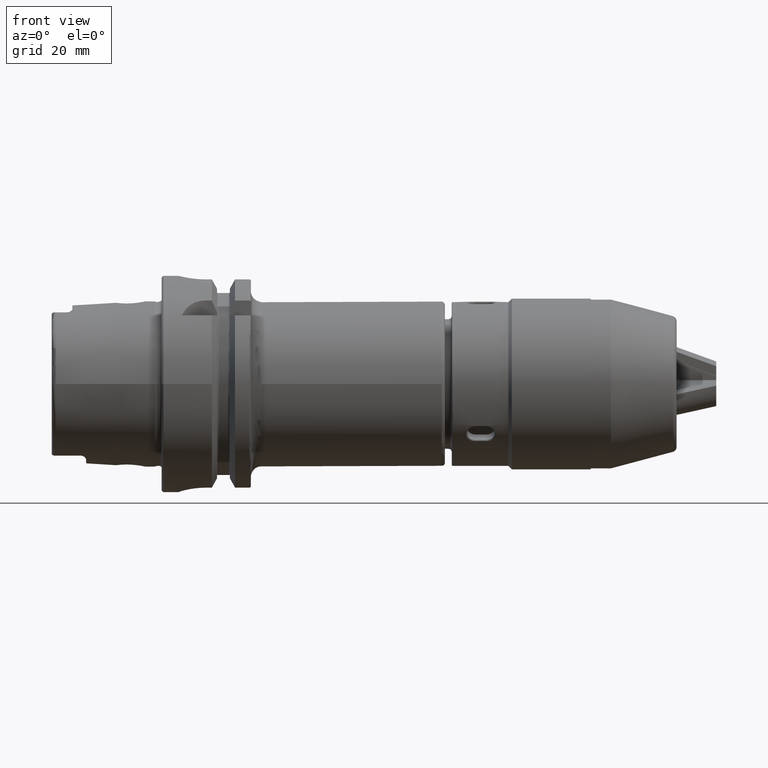
[diagram: clean part render]
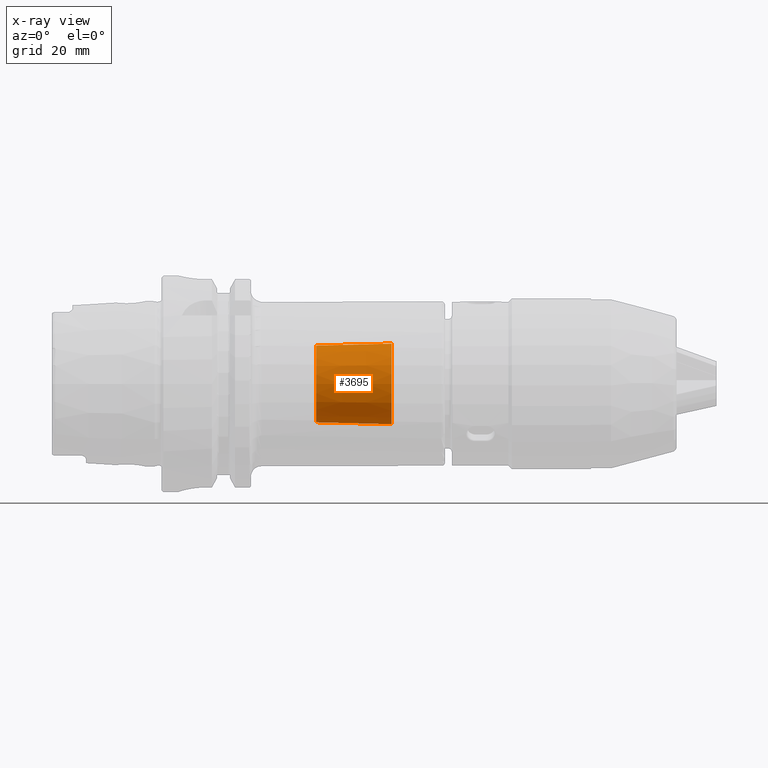
[diagram: x-ray — body ghosted, one internal face saturated and labeled with its STEP entity id]
A machine part, front view, then the same camera in x-ray: the body is ghosted and one INTERNAL B-rep face — a face not visible from any outside direction — is saturated and labeled: STEP entity #3695.
In plain terms, the highlighted conical surface has half-angle 1.438 deg.
Its self-contained STEP definition (entity closure, byte-faithful):
#99=CONICAL_SURFACE('',#4110,11.5389042588318,0.0250943439851743);
#204=LINE('',#5838,#439);
#439=VECTOR('',#4649,11.5389042588318);
#773=FACE_OUTER_BOUND('',#986,.T.);
#986=EDGE_LOOP('',(#2577,#2578,#2579,#2580,#2581,#2582));
#1298=CIRCLE('',#4093,11.815);
#1299=CIRCLE('',#4094,11.815);
#1310=CIRCLE('',#4111,11.2628085176636);
#1311=CIRCLE('',#4112,11.2628085176636);
#1545=VERTEX_POINT('',#5804);
#1546=VERTEX_POINT('',#5805);
#1557=VERTEX_POINT('',#5837);
#1558=VERTEX_POINT('',#5839);
#1947=EDGE_CURVE('',#1545,#1546,#1298,.T.);
#1948=EDGE_CURVE('',#1546,#1545,#1299,.T.);
#1962=EDGE_CURVE('',#1546,#1557,#204,.T.);
#1963=EDGE_CURVE('',#1558,#1557,#1310,.T.);
#1964=EDGE_CURVE('',#1557,#1558,#1311,.T.);
#2577=ORIENTED_EDGE('',*,*,#1947,.T.);
#2578=ORIENTED_EDGE('',*,*,#1962,.T.);
#2579=ORIENTED_EDGE('',*,*,#1963,.F.);
#2580=ORIENTED_EDGE('',*,*,#1964,.F.);
#2581=ORIENTED_EDGE('',*,*,#1962,.F.);
#2582=ORIENTED_EDGE('',*,*,#1948,.T.);
#3695=ADVANCED_FACE('',(#773),#99,.F.);
#4093=AXIS2_PLACEMENT_3D('',#5806,#4610,#4611);
#4094=AXIS2_PLACEMENT_3D('',#5807,#4612,#4613);
#4110=AXIS2_PLACEMENT_3D('',#5836,#4647,#4648);
#4111=AXIS2_PLACEMENT_3D('',#5840,#4650,#4651);
#4112=AXIS2_PLACEMENT_3D('',#5841,#4652,#4653);
#4610=DIRECTION('center_axis',(1.,0.,0.));
#4611=DIRECTION('ref_axis',(0.,0.,-1.));
#4612=DIRECTION('center_axis',(1.,0.,0.));
#4613=DIRECTION('ref_axis',(0.,0.,-1.));
#4647=DIRECTION('center_axis',(1.,0.,0.));
#4648=DIRECTION('ref_axis',(0.,1.,0.));
#4649=DIRECTION('',(-0.999685153472753,0.0250917103075386,3.07284827132598E-18));
#4650=DIRECTION('center_axis',(1.,0.,0.));
#4651=DIRECTION('ref_axis',(0.,0.,-1.));
#4652=DIRECTION('center_axis',(1.,0.,0.));
#4653=DIRECTION('ref_axis',(0.,0.,-1.));
#5804=CARTESIAN_POINT('',(67.,11.815,0.));
#5805=CARTESIAN_POINT('',(67.,-11.815,-1.4469201931926E-15));
#5806=CARTESIAN_POINT('Origin',(67.,0.,0.));
#5807=CARTESIAN_POINT('Origin',(67.,0.,0.));
#5836=CARTESIAN_POINT('Origin',(56.,0.,0.));
#5837=CARTESIAN_POINT('',(45.,-11.2628085176636,-1.37929624005662E-15));
#5838=CARTESIAN_POINT('',(56.,-11.5389042588318,-1.41310821662461E-15));
#5839=CARTESIAN_POINT('',(45.,11.2628085176636,0.));
#5840=CARTESIAN_POINT('Origin',(45.,0.,0.));
#5841=CARTESIAN_POINT('Origin',(45.,0.,0.));